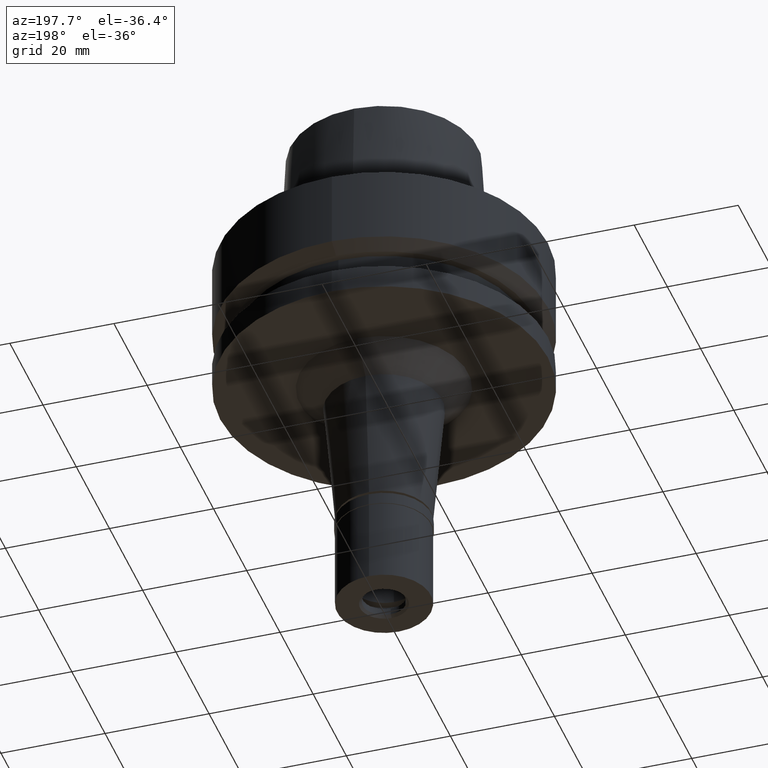
[diagram: clean part render]
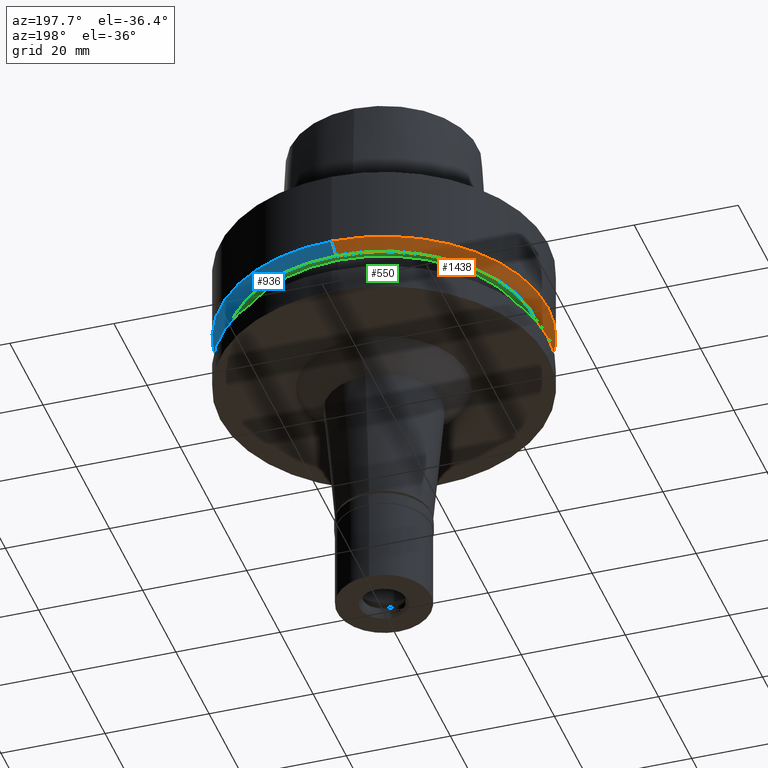
[diagram: same view with three faces highlighted in distinct colors, each labeled with its STEP entity id]
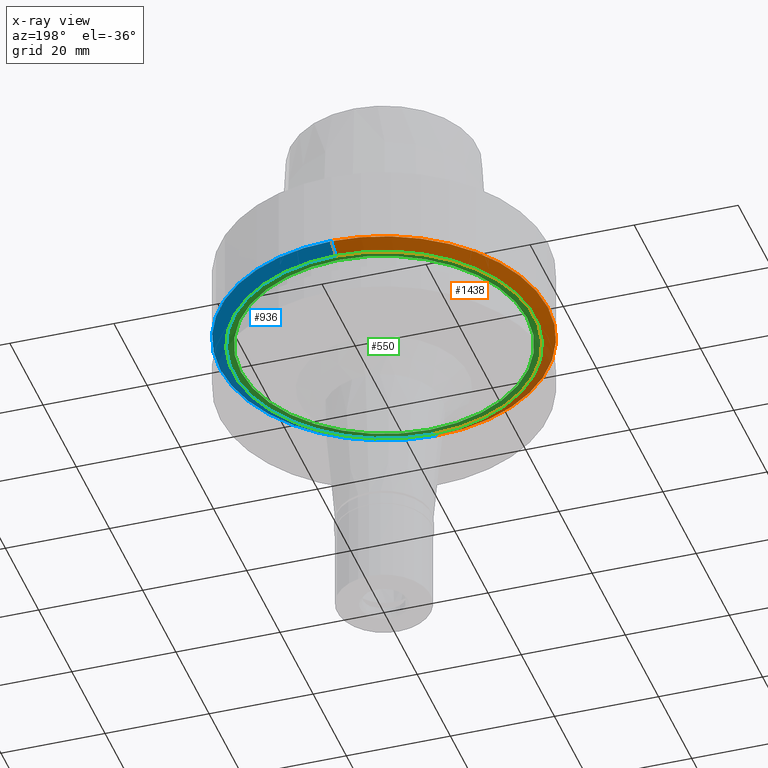
[diagram: x-ray of the same camera — body ghosted, the three highlighted faces saturated]
A machine part, auxiliary view with three faces highlighted in distinct colors.
The next image is the same camera in x-ray (body ghosted, the three faces saturated) — at least one of them is partly hidden behind the body in this view.
Their STEP definitions:

[orange] entity #1438 — the highlighted conical surface has half-angle 60 deg.
#12 = VERTEX_POINT ( 'NONE', #1617 ) ;
#181 = LINE ( 'NONE', #351, #463 ) ;
#286 = ORIENTED_EDGE ( 'NONE', *, *, #1642, .F. ) ;
#346 = AXIS2_PLACEMENT_3D ( 'NONE', #934, #703, #2410 ) ;
#351 = CARTESIAN_POINT ( 'NONE',  ( 0.0000000000000000000, 31.50000000000000000, -14.62250092523999889 ) ) ;
#463 = VECTOR ( 'NONE', #2282, 1000.000000000000000 ) ;
#502 = LINE ( 'NONE', #2372, #1561 ) ;
#602 = CARTESIAN_POINT ( 'NONE',  ( 0.0000000000000000000, 28.89759526419000224, -16.12500000000000000 ) ) ;
#659 = CARTESIAN_POINT ( 'NONE',  ( 0.0000000000000000000, 31.50000000000000000, -14.62250092523999889 ) ) ;
#703 = DIRECTION ( 'NONE',  ( 0.0000000000000000000, 0.0000000000000000000, 1.000000000000000000 ) ) ;
#779 = CONICAL_SURFACE ( 'NONE', #1694, 30.19879763209999979, 1.047197551196400456 ) ;
#934 = CARTESIAN_POINT ( 'NONE',  ( 0.0000000000000000000, 1.036372656197999898E-14, -16.12500000000000000 ) ) ;
#970 = DIRECTION ( 'NONE',  ( 0.0000000000000000000, 1.000000000000000000, 0.0000000000000000000 ) ) ;
#1146 = DIRECTION ( 'NONE',  ( 0.0000000000000000000, 1.000000000000000000, 0.0000000000000000000 ) ) ;
#1168 = AXIS2_PLACEMENT_3D ( 'NONE', #1177, #2252, #970 ) ;
#1174 = VERTEX_POINT ( 'NONE', #602 ) ;
#1177 = CARTESIAN_POINT ( 'NONE',  ( 0.0000000000000000000, 1.036372656197999898E-14, -14.62250092523999889 ) ) ;
#1187 = EDGE_CURVE ( 'NONE', #1367, #1174, #181, .T. ) ;
#1340 = CIRCLE ( 'NONE', #1168, 31.50000000000000000 ) ;
#1367 = VERTEX_POINT ( 'NONE', #659 ) ;
#1438 = ADVANCED_FACE ( 'NONE', ( #2401 ), #779, .T. ) ;
#1509 = EDGE_CURVE ( 'NONE', #12, #1844, #502, .T. ) ;
#1561 = VECTOR ( 'NONE', #2177, 1000.000000000000000 ) ;
#1617 = CARTESIAN_POINT ( 'NONE',  ( 0.0000000000000000000, -31.50000000000000000, -14.62250092523999889 ) ) ;
#1642 = EDGE_CURVE ( 'NONE', #1367, #12, #1340, .T. ) ;
#1694 = AXIS2_PLACEMENT_3D ( 'NONE', #2153, #1745, #1146 ) ;
#1744 = ORIENTED_EDGE ( 'NONE', *, *, #1187, .T. ) ;
#1745 = DIRECTION ( 'NONE',  ( 0.0000000000000000000, 0.0000000000000000000, 1.000000000000000000 ) ) ;
#1844 = VERTEX_POINT ( 'NONE', #2388 ) ;
#1973 = EDGE_LOOP ( 'NONE', ( #2480, #2029, #286, #1744 ) ) ;
#2029 = ORIENTED_EDGE ( 'NONE', *, *, #1509, .F. ) ;
#2072 = EDGE_CURVE ( 'NONE', #1174, #1844, #2450, .T. ) ;
#2153 = CARTESIAN_POINT ( 'NONE',  ( 0.0000000000000000000, 1.036372656197999898E-14, -15.37375046262000033 ) ) ;
#2177 = DIRECTION ( 'NONE',  ( 0.0000000000000000000, 0.8660254037843856390, -0.5000000000000918154 ) ) ;
#2252 = DIRECTION ( 'NONE',  ( 0.0000000000000000000, 0.0000000000000000000, 1.000000000000000000 ) ) ;
#2282 = DIRECTION ( 'NONE',  ( 0.0000000000000000000, -0.8660254037843856390, -0.5000000000000918154 ) ) ;
#2372 = CARTESIAN_POINT ( 'NONE',  ( 0.0000000000000000000, -31.50000000000000000, -14.62250092523999889 ) ) ;
#2388 = CARTESIAN_POINT ( 'NONE',  ( 0.0000000000000000000, -28.89759526419000224, -16.12500000000000000 ) ) ;
#2401 = FACE_OUTER_BOUND ( 'NONE', #1973, .T. ) ;
#2410 = DIRECTION ( 'NONE',  ( 0.0000000000000000000, 1.000000000000000000, 0.0000000000000000000 ) ) ;
#2450 = CIRCLE ( 'NONE', #346, 28.89759526419000224 ) ;
#2480 = ORIENTED_EDGE ( 'NONE', *, *, #2072, .T. ) ;

[blue] entity #936 — the highlighted conical surface has half-angle 60 deg.
#12 = VERTEX_POINT ( 'NONE', #1617 ) ;
#181 = LINE ( 'NONE', #351, #463 ) ;
#220 = EDGE_LOOP ( 'NONE', ( #1163, #1347, #912, #2400 ) ) ;
#280 = DIRECTION ( 'NONE',  ( 0.0000000000000000000, 0.0000000000000000000, 1.000000000000000000 ) ) ;
#296 = AXIS2_PLACEMENT_3D ( 'NONE', #2391, #760, #2012 ) ;
#332 = CARTESIAN_POINT ( 'NONE',  ( 0.0000000000000000000, 1.036372656197999898E-14, -14.62250092523999889 ) ) ;
#351 = CARTESIAN_POINT ( 'NONE',  ( 0.0000000000000000000, 31.50000000000000000, -14.62250092523999889 ) ) ;
#370 = DIRECTION ( 'NONE',  ( 0.0000000000000000000, -1.000000000000000000, 0.0000000000000000000 ) ) ;
#463 = VECTOR ( 'NONE', #2282, 1000.000000000000000 ) ;
#502 = LINE ( 'NONE', #2372, #1561 ) ;
#602 = CARTESIAN_POINT ( 'NONE',  ( 0.0000000000000000000, 28.89759526419000224, -16.12500000000000000 ) ) ;
#611 = CARTESIAN_POINT ( 'NONE',  ( 0.0000000000000000000, 1.036372656197999898E-14, -16.12500000000000000 ) ) ;
#646 = CIRCLE ( 'NONE', #1127, 31.50000000000000000 ) ;
#659 = CARTESIAN_POINT ( 'NONE',  ( 0.0000000000000000000, 31.50000000000000000, -14.62250092523999889 ) ) ;
#726 = CONICAL_SURFACE ( 'NONE', #296, 30.19879763209999979, 1.047197551196400456 ) ;
#760 = DIRECTION ( 'NONE',  ( 0.0000000000000000000, 0.0000000000000000000, 1.000000000000000000 ) ) ;
#828 = CIRCLE ( 'NONE', #956, 28.89759526419000224 ) ;
#912 = ORIENTED_EDGE ( 'NONE', *, *, #2616, .T. ) ;
#936 = ADVANCED_FACE ( 'NONE', ( #2457 ), #726, .T. ) ;
#956 = AXIS2_PLACEMENT_3D ( 'NONE', #611, #1228, #370 ) ;
#1127 = AXIS2_PLACEMENT_3D ( 'NONE', #332, #280, #1750 ) ;
#1163 = ORIENTED_EDGE ( 'NONE', *, *, #1931, .F. ) ;
#1174 = VERTEX_POINT ( 'NONE', #602 ) ;
#1187 = EDGE_CURVE ( 'NONE', #1367, #1174, #181, .T. ) ;
#1228 = DIRECTION ( 'NONE',  ( 0.0000000000000000000, 0.0000000000000000000, 1.000000000000000000 ) ) ;
#1347 = ORIENTED_EDGE ( 'NONE', *, *, #1509, .T. ) ;
#1367 = VERTEX_POINT ( 'NONE', #659 ) ;
#1509 = EDGE_CURVE ( 'NONE', #12, #1844, #502, .T. ) ;
#1561 = VECTOR ( 'NONE', #2177, 1000.000000000000000 ) ;
#1617 = CARTESIAN_POINT ( 'NONE',  ( 0.0000000000000000000, -31.50000000000000000, -14.62250092523999889 ) ) ;
#1750 = DIRECTION ( 'NONE',  ( 0.0000000000000000000, -1.000000000000000000, 0.0000000000000000000 ) ) ;
#1844 = VERTEX_POINT ( 'NONE', #2388 ) ;
#1931 = EDGE_CURVE ( 'NONE', #12, #1367, #646, .T. ) ;
#2012 = DIRECTION ( 'NONE',  ( 0.0000000000000000000, 1.000000000000000000, 0.0000000000000000000 ) ) ;
#2177 = DIRECTION ( 'NONE',  ( 0.0000000000000000000, 0.8660254037843856390, -0.5000000000000918154 ) ) ;
#2282 = DIRECTION ( 'NONE',  ( 0.0000000000000000000, -0.8660254037843856390, -0.5000000000000918154 ) ) ;
#2372 = CARTESIAN_POINT ( 'NONE',  ( 0.0000000000000000000, -31.50000000000000000, -14.62250092523999889 ) ) ;
#2388 = CARTESIAN_POINT ( 'NONE',  ( 0.0000000000000000000, -28.89759526419000224, -16.12500000000000000 ) ) ;
#2391 = CARTESIAN_POINT ( 'NONE',  ( 0.0000000000000000000, 1.036372656197999898E-14, -15.37375046262000033 ) ) ;
#2400 = ORIENTED_EDGE ( 'NONE', *, *, #1187, .F. ) ;
#2457 = FACE_OUTER_BOUND ( 'NONE', #220, .T. ) ;
#2616 = EDGE_CURVE ( 'NONE', #1844, #1174, #828, .T. ) ;

[green] entity #550 — the highlighted planar face has unit normal (0, 0, -1).
#143 = DIRECTION ( 'NONE',  ( 0.0000000000000000000, 0.0000000000000000000, -1.000000000000000000 ) ) ;
#338 = AXIS2_PLACEMENT_3D ( 'NONE', #845, #2492, #1673 ) ;
#346 = AXIS2_PLACEMENT_3D ( 'NONE', #934, #703, #2410 ) ;
#370 = DIRECTION ( 'NONE',  ( 0.0000000000000000000, -1.000000000000000000, 0.0000000000000000000 ) ) ;
#485 = EDGE_CURVE ( 'NONE', #1353, #886, #1908, .T. ) ;
#537 = DIRECTION ( 'NONE',  ( 0.0000000000000000000, 1.000000000000000000, 0.0000000000000000000 ) ) ;
#550 = ADVANCED_FACE ( 'NONE', ( #1882, #2052 ), #1244, .T. ) ;
#554 = CIRCLE ( 'NONE', #2001, 27.50000000000000000 ) ;
#602 = CARTESIAN_POINT ( 'NONE',  ( 0.0000000000000000000, 28.89759526419000224, -16.12500000000000000 ) ) ;
#611 = CARTESIAN_POINT ( 'NONE',  ( 0.0000000000000000000, 1.036372656197999898E-14, -16.12500000000000000 ) ) ;
#703 = DIRECTION ( 'NONE',  ( 0.0000000000000000000, 0.0000000000000000000, 1.000000000000000000 ) ) ;
#732 = ORIENTED_EDGE ( 'NONE', *, *, #2616, .F. ) ;
#828 = CIRCLE ( 'NONE', #956, 28.89759526419000224 ) ;
#845 = CARTESIAN_POINT ( 'NONE',  ( 0.0000000000000000000, 1.027172502784999774E-14, -16.12500000000000000 ) ) ;
#853 = CARTESIAN_POINT ( 'NONE',  ( 0.0000000000000000000, 27.50000000000000000, -16.12500000000000000 ) ) ;
#886 = VERTEX_POINT ( 'NONE', #1198 ) ;
#934 = CARTESIAN_POINT ( 'NONE',  ( 0.0000000000000000000, 1.036372656197999898E-14, -16.12500000000000000 ) ) ;
#956 = AXIS2_PLACEMENT_3D ( 'NONE', #611, #1228, #370 ) ;
#962 = DIRECTION ( 'NONE',  ( 0.0000000000000000000, -1.000000000000000000, 0.0000000000000000000 ) ) ;
#1174 = VERTEX_POINT ( 'NONE', #602 ) ;
#1197 = EDGE_LOOP ( 'NONE', ( #1681, #1362 ) ) ;
#1198 = CARTESIAN_POINT ( 'NONE',  ( 0.0000000000000000000, -27.50000000000000000, -16.12500000000000000 ) ) ;
#1204 = EDGE_CURVE ( 'NONE', #886, #1353, #554, .T. ) ;
#1228 = DIRECTION ( 'NONE',  ( 0.0000000000000000000, 0.0000000000000000000, 1.000000000000000000 ) ) ;
#1232 = CARTESIAN_POINT ( 'NONE',  ( 0.0000000000000000000, 1.589224151253999740E-14, -16.12500000000000000 ) ) ;
#1244 = PLANE ( 'NONE',  #338 ) ;
#1353 = VERTEX_POINT ( 'NONE', #853 ) ;
#1362 = ORIENTED_EDGE ( 'NONE', *, *, #1204, .F. ) ;
#1409 = EDGE_LOOP ( 'NONE', ( #2139, #732 ) ) ;
#1579 = CARTESIAN_POINT ( 'NONE',  ( 0.0000000000000000000, 1.589224151253999740E-14, -16.12500000000000000 ) ) ;
#1673 = DIRECTION ( 'NONE',  ( 0.0000000000000000000, -1.000000000000000000, 0.0000000000000000000 ) ) ;
#1681 = ORIENTED_EDGE ( 'NONE', *, *, #485, .F. ) ;
#1690 = AXIS2_PLACEMENT_3D ( 'NONE', #1579, #2424, #537 ) ;
#1844 = VERTEX_POINT ( 'NONE', #2388 ) ;
#1882 = FACE_OUTER_BOUND ( 'NONE', #1409, .T. ) ;
#1908 = CIRCLE ( 'NONE', #1690, 27.50000000000000000 ) ;
#2001 = AXIS2_PLACEMENT_3D ( 'NONE', #1232, #143, #962 ) ;
#2052 = FACE_BOUND ( 'NONE', #1197, .T. ) ;
#2072 = EDGE_CURVE ( 'NONE', #1174, #1844, #2450, .T. ) ;
#2139 = ORIENTED_EDGE ( 'NONE', *, *, #2072, .F. ) ;
#2388 = CARTESIAN_POINT ( 'NONE',  ( 0.0000000000000000000, -28.89759526419000224, -16.12500000000000000 ) ) ;
#2410 = DIRECTION ( 'NONE',  ( 0.0000000000000000000, 1.000000000000000000, 0.0000000000000000000 ) ) ;
#2424 = DIRECTION ( 'NONE',  ( 0.0000000000000000000, 0.0000000000000000000, -1.000000000000000000 ) ) ;
#2450 = CIRCLE ( 'NONE', #346, 28.89759526419000224 ) ;
#2492 = DIRECTION ( 'NONE',  ( 0.0000000000000000000, 0.0000000000000000000, -1.000000000000000000 ) ) ;
#2616 = EDGE_CURVE ( 'NONE', #1844, #1174, #828, .T. ) ;